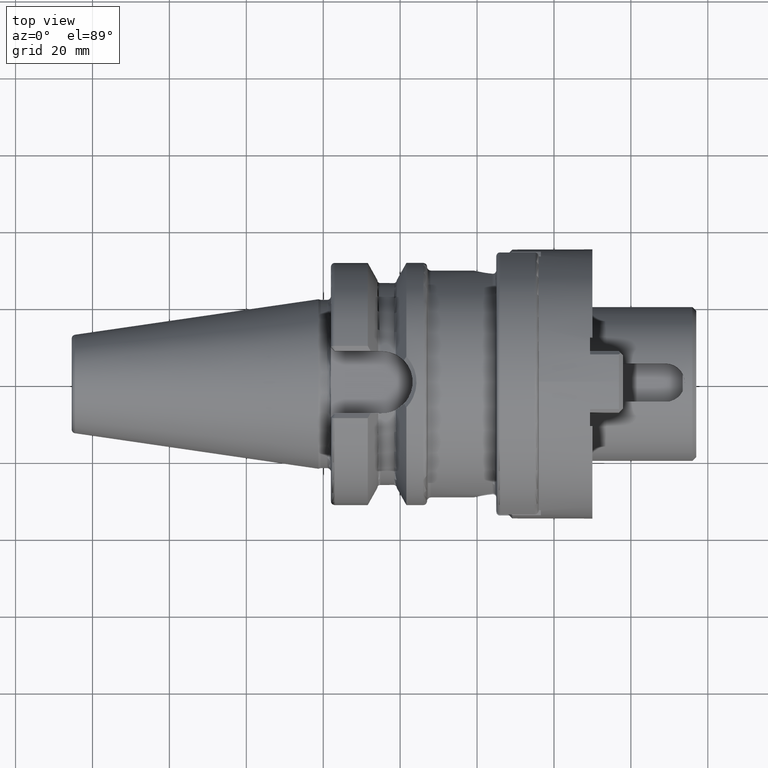
[diagram: clean part render]
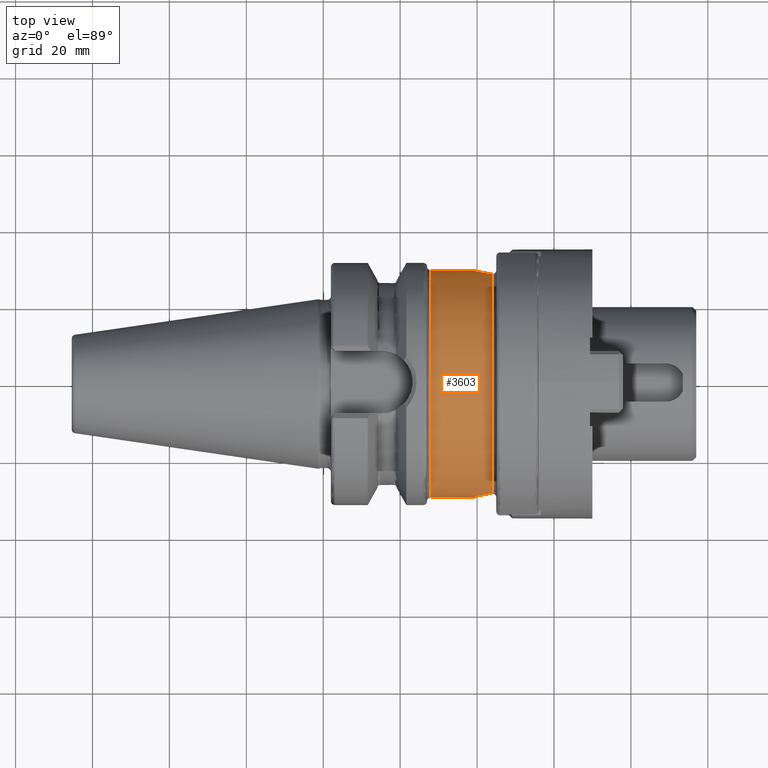
[diagram: same view with one face highlighted and labeled with its STEP entity id]
A machine part, top view. The second image highlights one B-rep face of the part: STEP entity #3603.
In plain terms, the highlighted cylindrical surface (partial cylindrical patch) has radius 29.5 mm, axis along (1, 0, 0).
Its self-contained STEP definition (entity closure, byte-faithful):
#881=DIRECTION('',(-1.E0,0.E0,-1.369864943108E-13));
#882=VECTOR('',#881,1.100003906288E1);
#883=CARTESIAN_POINT('',(3.9E1,2.95E1,5.332035181042E-14));
#884=LINE('',#883,#882);
#890=DIRECTION('',(-1.E0,0.E0,1.328781441163E-13));
#891=VECTOR('',#890,1.100003906288E1);
#892=CARTESIAN_POINT('',(3.9E1,-2.95E1,-1.884311218201E-14));
#893=LINE('',#892,#891);
#1368=CARTESIAN_POINT('',(3.9E1,-2.95E1,-1.884311218201E-14));
#1369=CARTESIAN_POINT('',(3.9E1,-2.95E1,2.358778120185E-1));
#1370=CARTESIAN_POINT('',(3.902056999711E1,-2.949437644897E1,
7.072061018408E-1));
#1371=CARTESIAN_POINT('',(3.911515246663E1,-2.946870497427E1,1.418716641705E0));
#1372=CARTESIAN_POINT('',(3.927223568338E1,-2.942669640358E1,2.115709798317E0));
#1373=CARTESIAN_POINT('',(3.948602629918E1,-2.937079448660E1,2.783720559767E0));
#1374=CARTESIAN_POINT('',(3.975441866619E1,-2.930263950790E1,3.427236355159E0));
#1375=CARTESIAN_POINT('',(4.009848285789E1,-2.921855970799E1,4.083797789120E0));
#1376=CARTESIAN_POINT('',(4.054585146451E1,-2.911474286218E1,4.770153607334E0));
#1377=CARTESIAN_POINT('',(4.114406225525E1,-2.898586422967E1,5.500868385512E0));
#1378=CARTESIAN_POINT('',(4.191615254252E1,-2.883688582975E1,6.233935627727E0));
#1379=CARTESIAN_POINT('',(4.286226522070E1,-2.868176363782E1,6.909748220850E0));
#1380=CARTESIAN_POINT('',(4.359978138417E1,-2.858659060420E1,7.285980632949E0));
#1381=CARTESIAN_POINT('',(4.4E1,-2.854382595238E1,7.449832212876E0));
#1383=CARTESIAN_POINT('',(2.799996093712E1,0.E0,0.E0));
#1384=DIRECTION('',(1.E0,0.E0,0.E0));
#1385=DIRECTION('',(0.E0,1.E0,0.E0));
#1386=AXIS2_PLACEMENT_3D('',#1383,#1384,#1385);
#1388=CARTESIAN_POINT('',(4.4E1,2.854382595238E1,7.449832212876E0));
#1389=CARTESIAN_POINT('',(4.360161168614E1,2.858639503052E1,7.286729968080E0));
#1390=CARTESIAN_POINT('',(4.286677100018E1,2.868113481176E1,6.912275779476E0));
#1391=CARTESIAN_POINT('',(4.192202489527E1,2.883584390407E1,6.238681391950E0));
#1392=CARTESIAN_POINT('',(4.114968117758E1,2.898471317890E1,5.506900602096E0));
#1393=CARTESIAN_POINT('',(4.055032803107E1,2.911373591936E1,4.776310364114E0));
#1394=CARTESIAN_POINT('',(4.010177997330E1,2.921777076758E1,4.089477683027E0));
#1395=CARTESIAN_POINT('',(3.975665922625E1,2.930207864985E1,3.432087456616E0));
#1396=CARTESIAN_POINT('',(3.948743266156E1,2.937043052975E1,2.787632897298E0));
#1397=CARTESIAN_POINT('',(3.927302738871E1,2.942648616068E1,2.118721625390E0));
#1398=CARTESIAN_POINT('',(3.911551633621E1,2.946860653847E1,1.420912025004E0));
#1399=CARTESIAN_POINT('',(3.902063840087E1,2.949435770691E1,7.083586827317E-1));
#1400=CARTESIAN_POINT('',(3.9E1,2.95E1,2.362766313308E-1));
#1401=CARTESIAN_POINT('',(3.9E1,2.95E1,5.332035181042E-14));
#1403=CARTESIAN_POINT('',(4.4E1,0.E0,0.E0));
#1404=DIRECTION('',(1.E0,0.E0,0.E0));
#1405=DIRECTION('',(0.E0,9.675873204198E-1,2.525366851822E-1));
#1406=AXIS2_PLACEMENT_3D('',#1403,#1404,#1405);
#1926=CARTESIAN_POINT('',(2.799996093712E1,-2.95E1,0.E0));
#1927=CARTESIAN_POINT('',(2.799996093712E1,2.95E1,0.E0));
#1928=VERTEX_POINT('',#1926);
#1929=VERTEX_POINT('',#1927);
#1938=VERTEX_POINT('',#1388);
#1939=VERTEX_POINT('',#1401);
#1950=VERTEX_POINT('',#1368);
#1951=VERTEX_POINT('',#1381);
#3590=CARTESIAN_POINT('',(2.35E1,0.E0,0.E0));
#3591=DIRECTION('',(1.E0,0.E0,0.E0));
#3592=DIRECTION('',(0.E0,-1.E0,0.E0));
#3593=AXIS2_PLACEMENT_3D('',#3590,#3591,#3592);
#3594=CYLINDRICAL_SURFACE('',#3593,2.95E1);
#3595=ORIENTED_EDGE('',*,*,#3100,.F.);
#3596=ORIENTED_EDGE('',*,*,#3079,.T.);
#3597=ORIENTED_EDGE('',*,*,#3032,.F.);
#3598=ORIENTED_EDGE('',*,*,#3076,.F.);
#3599=ORIENTED_EDGE('',*,*,#3496,.F.);
#3600=ORIENTED_EDGE('',*,*,#3583,.T.);
#3601=EDGE_LOOP('',(#3595,#3596,#3597,#3598,#3599,#3600));
#3602=FACE_OUTER_BOUND('',#3601,.F.);
#3603=ADVANCED_FACE('',(#3602),#3594,.T.);
#1382=B_SPLINE_CURVE_WITH_KNOTS('',3,(#1368,#1369,#1370,#1371,#1372,#1373,#1374,
#1375,#1376,#1377,#1378,#1379,#1380,#1381),.UNSPECIFIED.,.F.,.F.,(4,1,1,1,1,1,1,
1,1,1,1,4),(0.E0,9.090909090909E-2,1.818181818182E-1,2.727272727273E-1,
3.636363636364E-1,4.545454545455E-1,5.454545454545E-1,6.363636363636E-1,
7.272727272727E-1,8.181818181818E-1,9.090909090909E-1,1.E0),.UNSPECIFIED.);
#1387=CIRCLE('',#1386,2.95E1);
#1402=B_SPLINE_CURVE_WITH_KNOTS('',3,(#1388,#1389,#1390,#1391,#1392,#1393,#1394,
#1395,#1396,#1397,#1398,#1399,#1400,#1401),.UNSPECIFIED.,.F.,.F.,(4,1,1,1,1,1,1,
1,1,1,1,4),(0.E0,9.090909090909E-2,1.818181818182E-1,2.727272727273E-1,
3.636363636364E-1,4.545454545455E-1,5.454545454545E-1,6.363636363636E-1,
7.272727272727E-1,8.181818181818E-1,9.090909090909E-1,1.E0),.UNSPECIFIED.);
#1407=CIRCLE('',#1406,2.95E1);
#3032=EDGE_CURVE('',#1929,#1928,#1387,.T.);
#3076=EDGE_CURVE('',#1939,#1929,#884,.T.);
#3079=EDGE_CURVE('',#1950,#1928,#893,.T.);
#3100=EDGE_CURVE('',#1950,#1951,#1382,.T.);
#3496=EDGE_CURVE('',#1938,#1939,#1402,.T.);
#3583=EDGE_CURVE('',#1938,#1951,#1407,.T.);